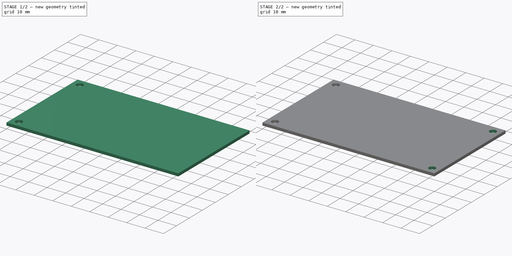
[diagram: build sequence overview — one tinted view per stage of 2, left to right]
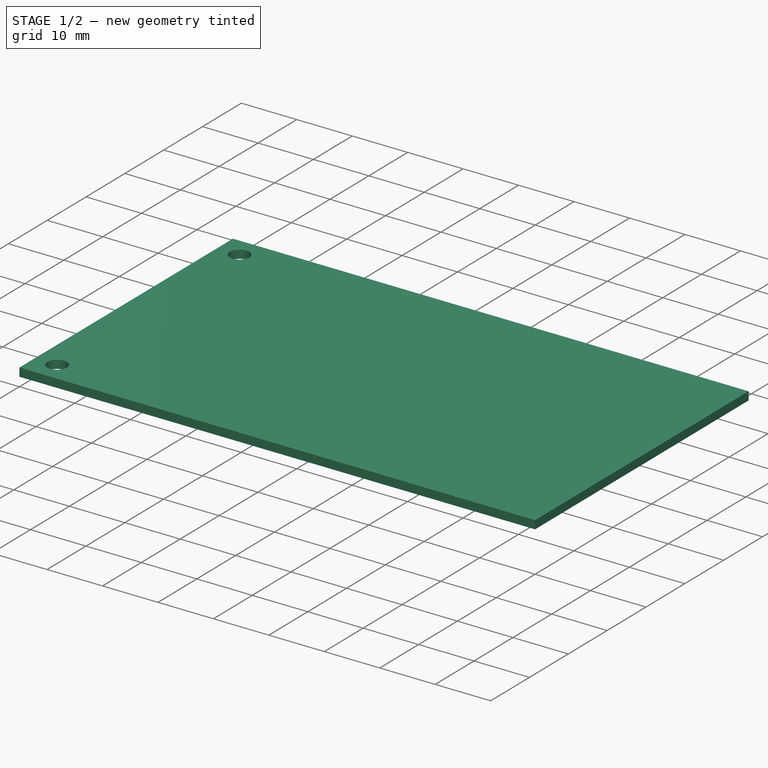
[diagram: stage 1 of 2 — iso view after this stage's code; geometry added in this stage tinted green]
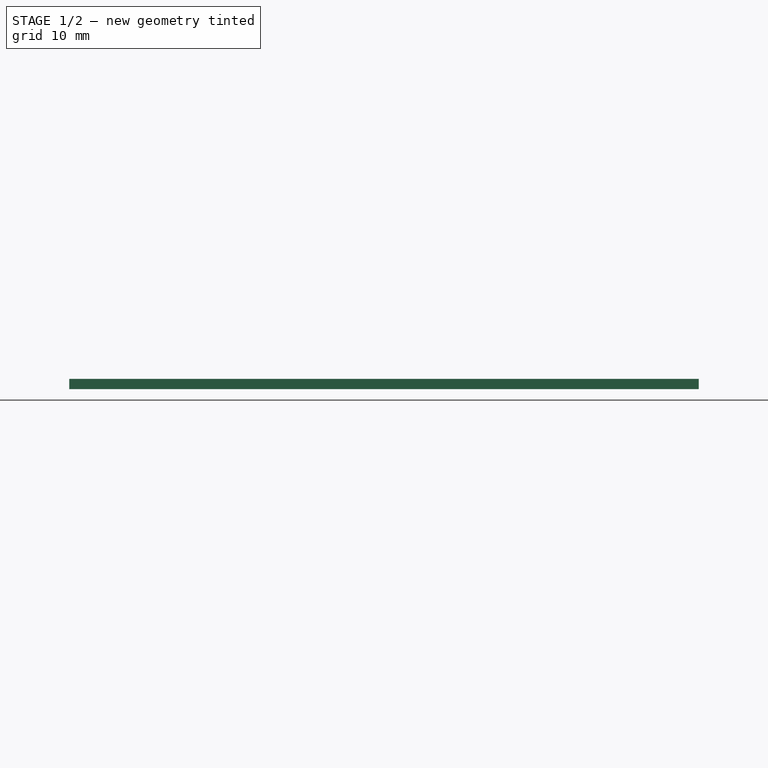
[diagram: stage 1 of 2 — front view after this stage's code; geometry added in this stage tinted green]
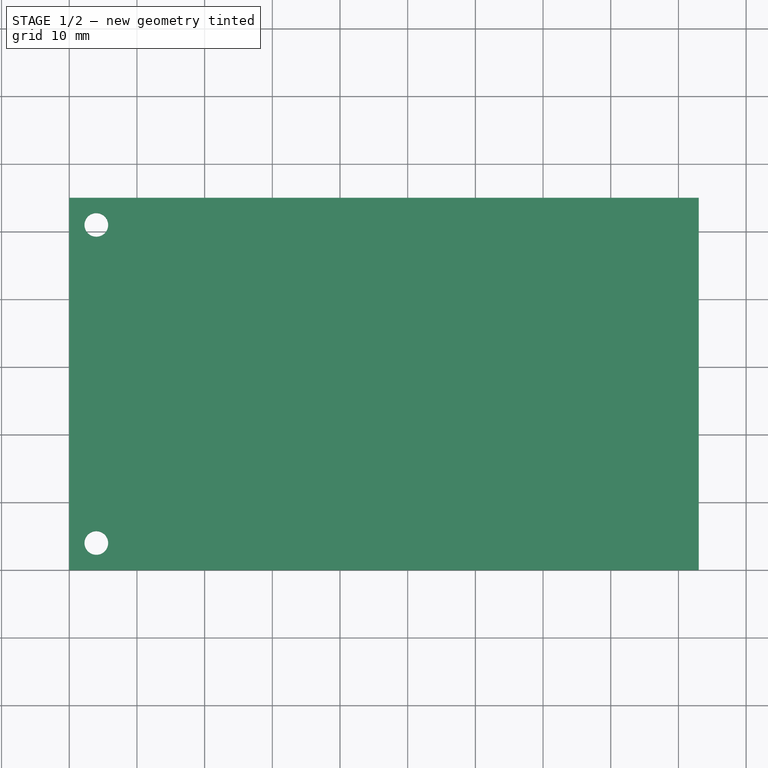
[diagram: stage 1 of 2 — top view after this stage's code; geometry added in this stage tinted green]
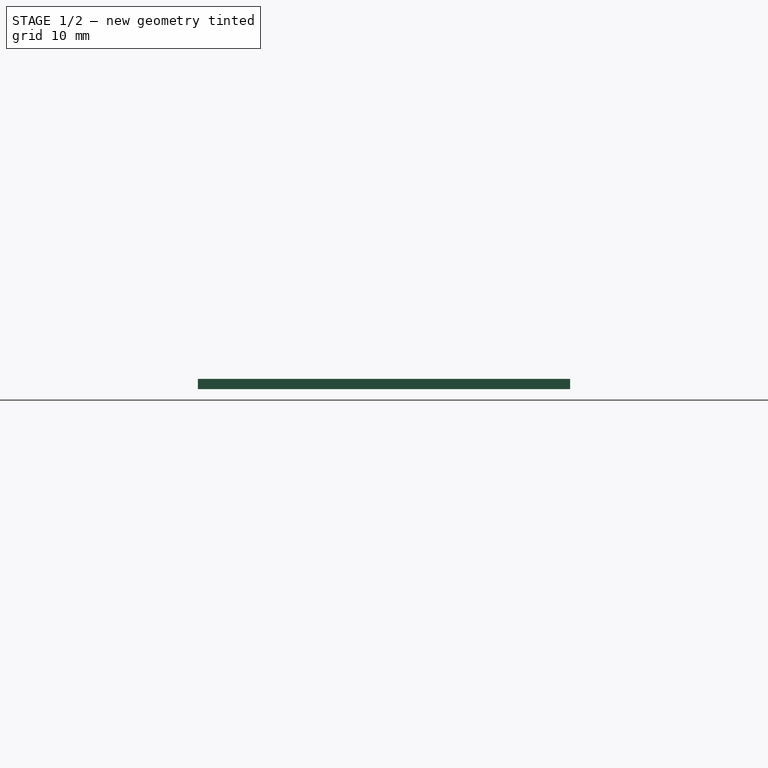
[diagram: stage 1 of 2 — right view after this stage's code; geometry added in this stage tinted green]
FCSTD DOCUMENT  (FreeCAD 0.14R3692 (Git))
Label: Board_Keypad
License: CC-BY 3.0
LicenseURL: http://creativecommons.org/licenses/by/3.0/
objects: Part::Box×1, Sketcher::SketchObject×1, PartDesign::Pocket×1, PartDesign::LinearPattern×1, Part::Feature×1
note: 6 computed .brp shape members not serialized (recipe doc carries the construction recipe); baked Part::Feature solids carry a one-line shape summary decoded from their .brp

FEATURE [Part::Box] Box  label="Cube_PCB"
  Height = 1.5
  Length = 93
  Width = 55
FEATURE [Sketcher::SketchObject] Sketch
  Placement = pos=(0,0,1.5) rot=(0,0,1;0rad)
  Support = -> Box [Face6]
  sketch-geometry (2):
    g0: Circle CenterX=4 CenterY=4 CenterZ=0 NormalX=0 NormalY=0 NormalZ=1 Radius=1.75
    g1: Circle CenterX=4 CenterY=51 CenterZ=0 NormalX=0 NormalY=0 NormalZ=1 Radius=1.75
  constraints (6):
    c: Radius(g0) = 1.75
    c: DistanceY(g-1,g0) = 4
    c: DistanceX(g-1,g0) = 4
    c: DistanceY(g1,g0) = -47
    c: DistanceX(g-1,g1) = 4
    c: Equal(g1,g0)
FEATURE [PartDesign::Pocket] Pocket
  Length = 5
  Sketch = -> Sketch
  Type = 1
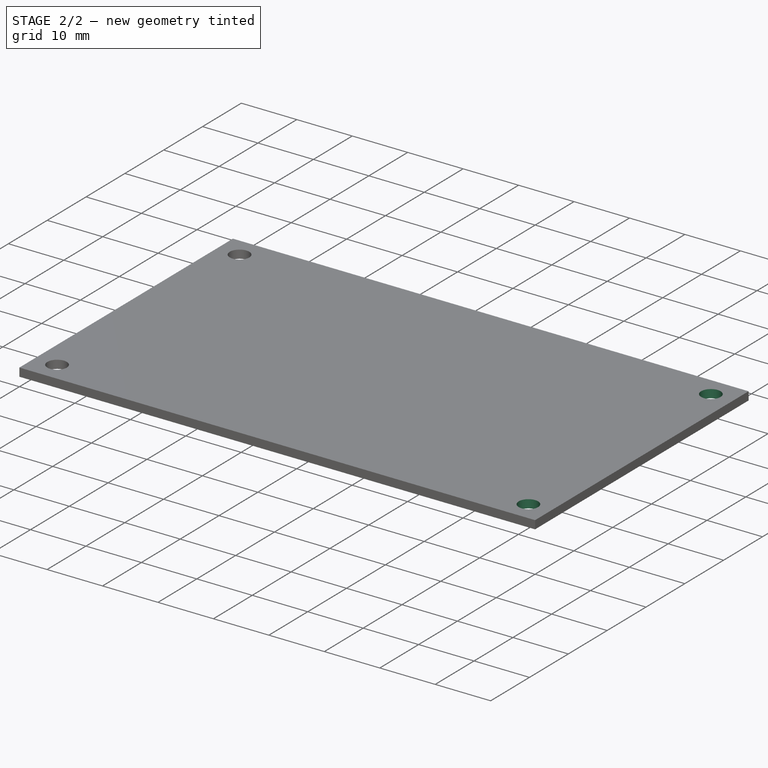
[diagram: stage 2 of 2 — iso view after this stage's code; geometry added in this stage tinted green]
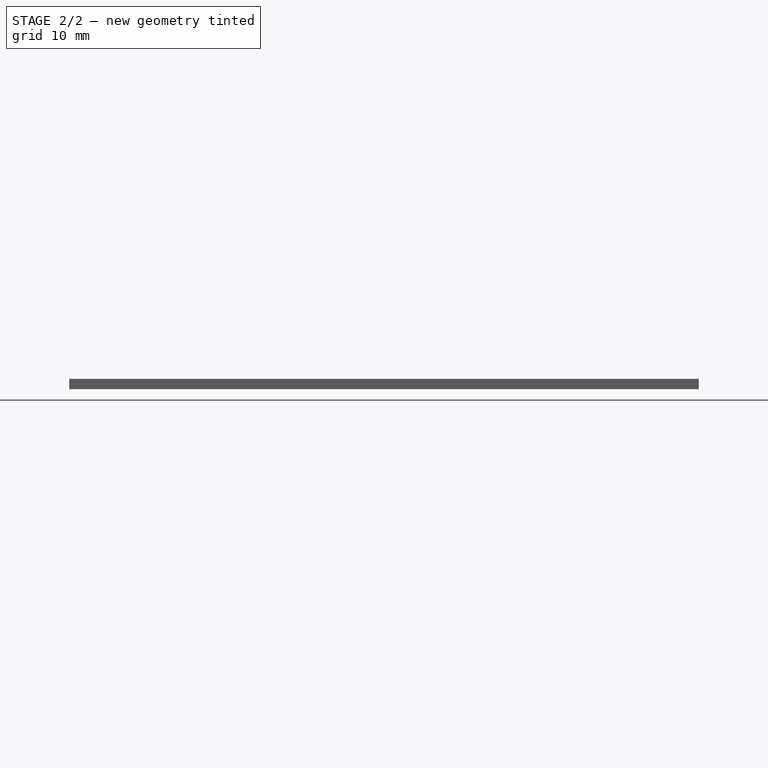
[diagram: stage 2 of 2 — front view after this stage's code; geometry added in this stage tinted green]
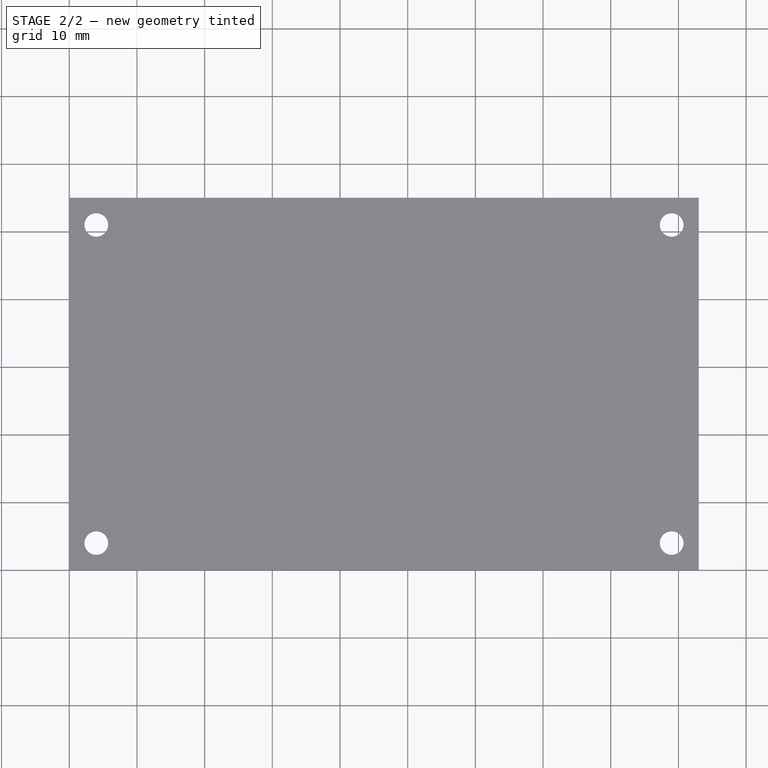
[diagram: stage 2 of 2 — top view after this stage's code; geometry added in this stage tinted green]
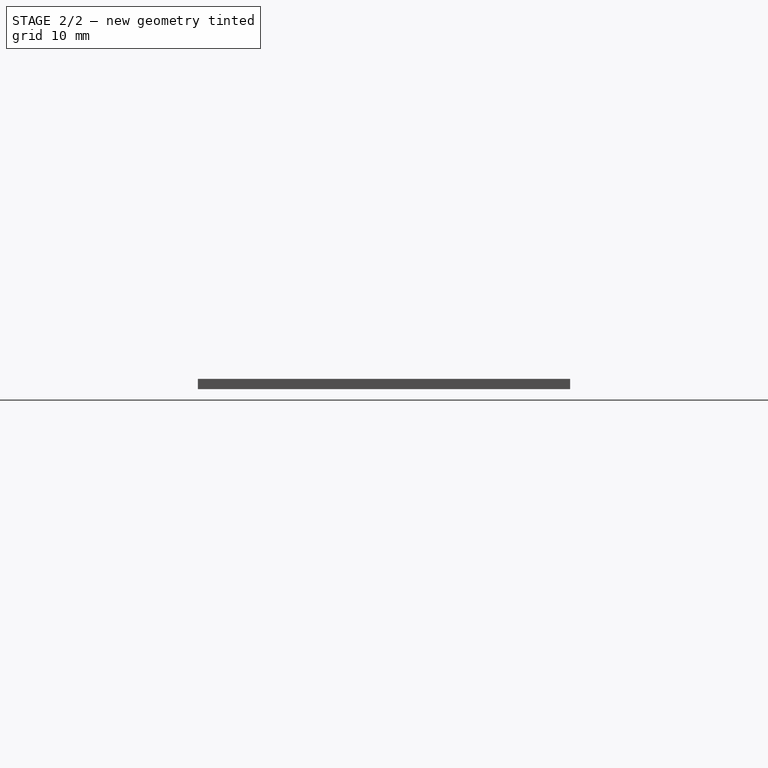
[diagram: stage 2 of 2 — right view after this stage's code; geometry added in this stage tinted green]
FEATURE [PartDesign::LinearPattern] LinearPattern
  Direction = -> Sketch [H_Axis]
  Length = 85
  Occurrences = 2
  Originals = -> [Pocket]
FEATURE [Part::Feature] LinearPattern001  label="Board_Keypad"
  shape: bbox 93 x 55 x 1.5 mm, 10 faces (baked)
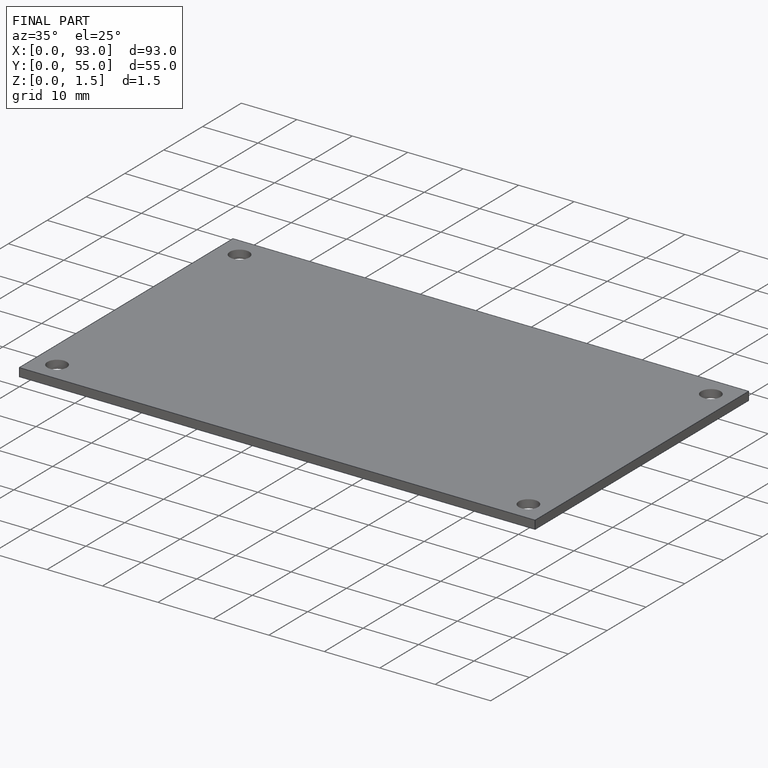
[diagram: finished part — iso view with bounding-box wireframe]
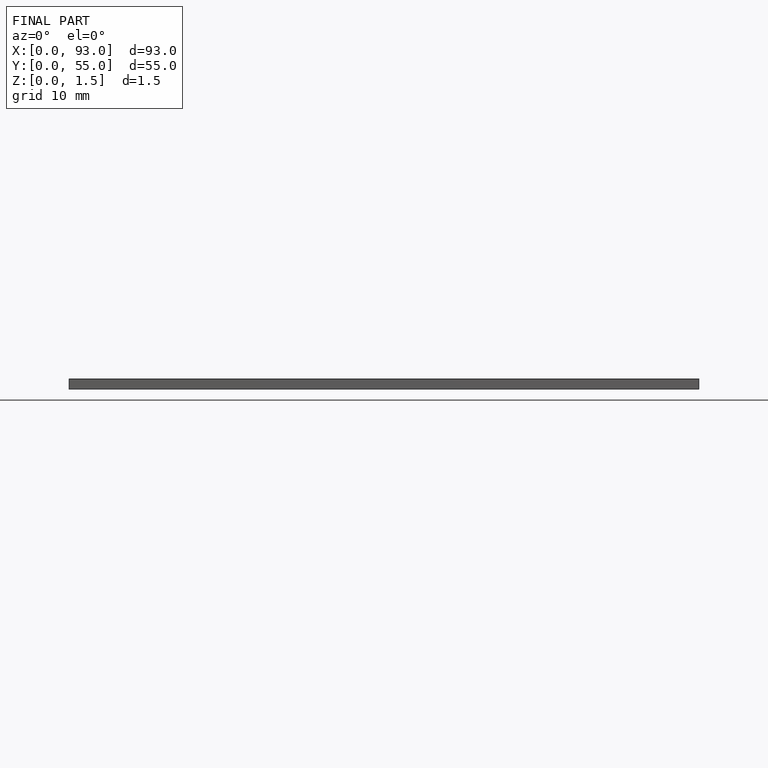
[diagram: finished part — front view with bounding-box wireframe]
